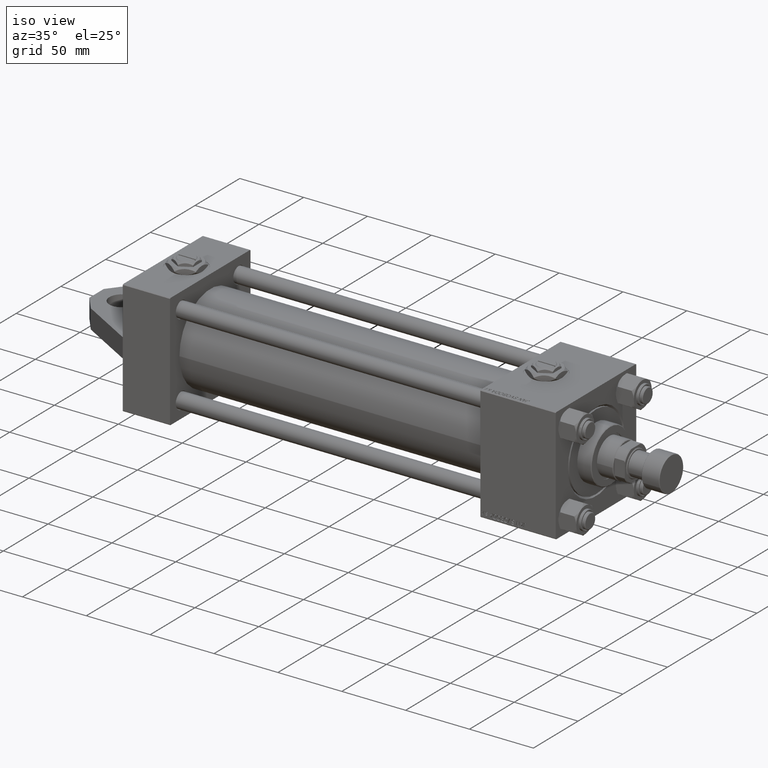
[diagram: clean part render]
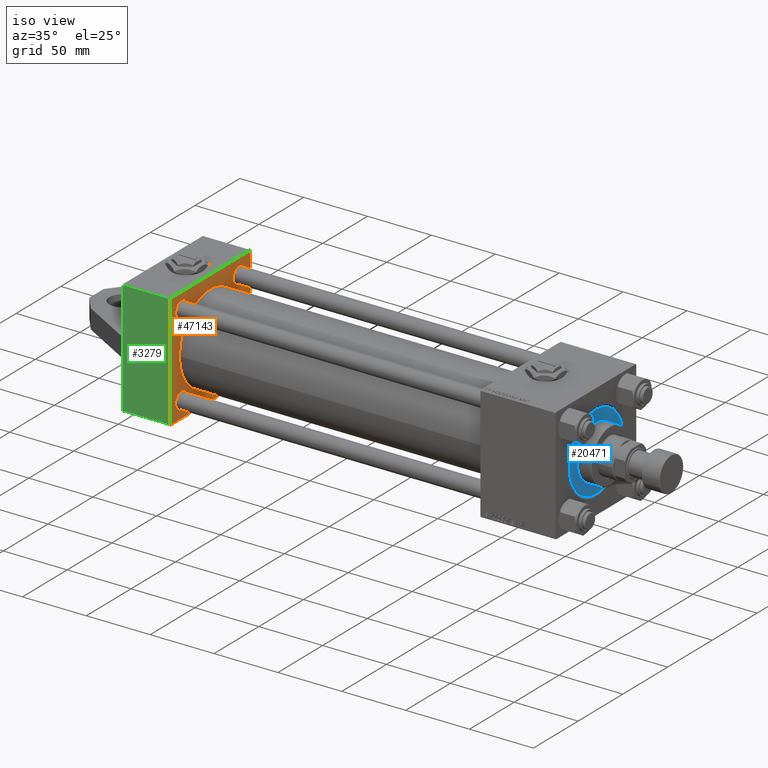
[diagram: same view with three faces highlighted in distinct colors, each labeled with its STEP entity id]
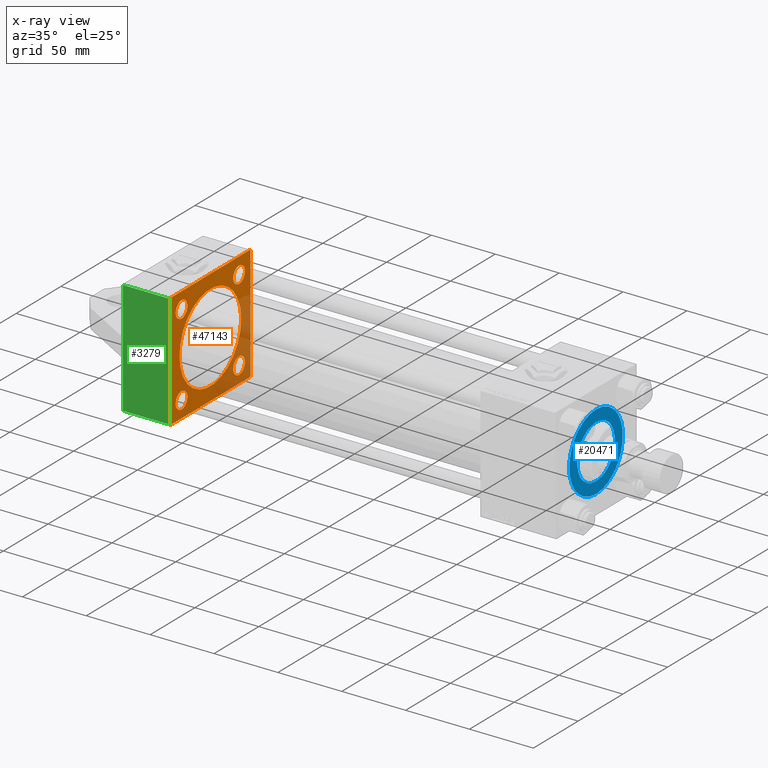
[diagram: x-ray of the same camera — body ghosted, the three highlighted faces saturated]
A machine part, iso view with three faces highlighted in distinct colors.
The next image is the same camera in x-ray (body ghosted, the three faces saturated) — at least one of them is partly hidden behind the body in this view.
Their STEP definitions:

[orange] entity #47143 — the highlighted planar face has unit normal (-1, -0, 0).
#2 = LINE ( 'NONE', #495, #3690 ) ;
#55 = CIRCLE ( 'NONE', #14951, 34.50000000000000000 ) ;
#204 = DIRECTION ( 'NONE',  ( 0.000000000000000000, 0.000000000000000000, 1.000000000000000000 ) ) ;
#495 = CARTESIAN_POINT ( 'NONE',  ( 37.00000000000000000, 44.99999999999998579, -44.99999999999998579 ) ) ;
#504 = CARTESIAN_POINT ( 'NONE',  ( 37.00000000000000000, -45.00000000000000711, 44.49999999999997158 ) ) ;
#586 = LINE ( 'NONE', #4527, #29570 ) ;
#946 = CIRCLE ( 'NONE', #26043, 6.499999999999922728 ) ;
#1616 = FACE_BOUND ( 'NONE', #37236, .T. ) ;
#2526 = ORIENTED_EDGE ( 'NONE', *, *, #20070, .F. ) ;
#2627 = DIRECTION ( 'NONE',  ( 1.000000000000000000, -0.000000000000000000, 0.000000000000000000 ) ) ;
#3173 = LINE ( 'NONE', #3410, #33235 ) ;
#3410 = CARTESIAN_POINT ( 'NONE',  ( 37.00000000000000000, 44.99999999999998579, 45.00000000000001421 ) ) ;
#3493 = ORIENTED_EDGE ( 'NONE', *, *, #23707, .T. ) ;
#3517 = DIRECTION ( 'NONE',  ( 0.000000000000000000, 0.7071067811865474617, -0.7071067811865474617 ) ) ;
#3690 = VECTOR ( 'NONE', #11313, 1000.000000000000000 ) ;
#3725 = DIRECTION ( 'NONE',  ( 0.000000000000000000, 0.000000000000000000, 1.000000000000000000 ) ) ;
#3971 = VECTOR ( 'NONE', #22260, 1000.000000000000114 ) ;
#4245 = CARTESIAN_POINT ( 'NONE',  ( 37.00000000000000000, -44.49999999999995737, 45.00000000000000000 ) ) ;
#4309 = ORIENTED_EDGE ( 'NONE', *, *, #12091, .T. ) ;
#4527 = CARTESIAN_POINT ( 'NONE',  ( 37.00000000000000000, -45.00000000000000711, 44.49999999999997158 ) ) ;
#4668 = VERTEX_POINT ( 'NONE', #23167 ) ;
#4688 = VERTEX_POINT ( 'NONE', #4245 ) ;
#4911 = VERTEX_POINT ( 'NONE', #47694 ) ;
#5779 = CARTESIAN_POINT ( 'NONE',  ( 37.00000000000000711, -2.602085213965210642E-15, 34.50000000000000000 ) ) ;
#6686 = DIRECTION ( 'NONE',  ( 1.000000000000000000, -0.000000000000000000, 0.000000000000000000 ) ) ;
#6786 = ORIENTED_EDGE ( 'NONE', *, *, #24041, .T. ) ;
#7144 = EDGE_CURVE ( 'NONE', #34865, #38864, #38962, .T. ) ;
#7212 = DIRECTION ( 'NONE',  ( 0.000000000000000000, 0.000000000000000000, 1.000000000000000000 ) ) ;
#7765 = LINE ( 'NONE', #37747, #8534 ) ;
#7767 = DIRECTION ( 'NONE',  ( -1.000000000000000000, 0.000000000000000000, -0.000000000000000000 ) ) ;
#8114 = LINE ( 'NONE', #19179, #42486 ) ;
#8487 = EDGE_CURVE ( 'NONE', #27273, #17897, #18452, .T. ) ;
#8504 = CIRCLE ( 'NONE', #32835, 6.499999999999950262 ) ;
#8534 = VECTOR ( 'NONE', #3517, 1000.000000000000114 ) ;
#8935 = EDGE_CURVE ( 'NONE', #11429, #41858, #17056, .T. ) ;
#8977 = CIRCLE ( 'NONE', #44302, 6.499999999999936051 ) ;
#8981 = FACE_BOUND ( 'NONE', #32952, .T. ) ;
#9510 = CARTESIAN_POINT ( 'NONE',  ( 37.00000000000000711, -2.602085213965210642E-15, 0.000000000000000000 ) ) ;
#9577 = EDGE_CURVE ( 'NONE', #18517, #36814, #2, .T. ) ;
#10237 = EDGE_LOOP ( 'NONE', ( #26459, #13084 ) ) ;
#10491 = CIRCLE ( 'NONE', #35616, 6.499999999999950262 ) ;
#10886 = EDGE_CURVE ( 'NONE', #24777, #11885, #8504, .T. ) ;
#11082 = CIRCLE ( 'NONE', #40147, 6.499999999999922728 ) ;
#11186 = CARTESIAN_POINT ( 'NONE',  ( 37.00000000000000000, 32.14999999999999147, 32.15000000000000568 ) ) ;
#11313 = DIRECTION ( 'NONE',  ( 0.000000000000000000, -1.000000000000000000, -1.541976423090495633E-16 ) ) ;
#11429 = VERTEX_POINT ( 'NONE', #5779 ) ;
#11885 = VERTEX_POINT ( 'NONE', #24047 ) ;
#12091 = EDGE_CURVE ( 'NONE', #17897, #36814, #7765, .T. ) ;
#12118 = CARTESIAN_POINT ( 'NONE',  ( 37.00000000000000000, 44.49999999999998579, 45.00000000000001421 ) ) ;
#12431 = DIRECTION ( 'NONE',  ( -1.000000000000000000, 0.000000000000000000, -0.000000000000000000 ) ) ;
#12666 = CARTESIAN_POINT ( 'NONE',  ( 37.00000000000000000, 0.000000000000000000, 0.000000000000000000 ) ) ;
#13084 = ORIENTED_EDGE ( 'NONE', *, *, #10886, .T. ) ;
#13355 = CARTESIAN_POINT ( 'NONE',  ( 37.00000000000000000, 44.99999999999998579, -44.49999999999995737 ) ) ;
#13492 = DIRECTION ( 'NONE',  ( -1.000000000000000000, 0.000000000000000000, -0.000000000000000000 ) ) ;
#14745 = CARTESIAN_POINT ( 'NONE',  ( 37.00000000000000000, -45.00000000000000711, 45.00000000000000000 ) ) ;
#14951 = AXIS2_PLACEMENT_3D ( 'NONE', #27841, #6686, #3725 ) ;
#15385 = EDGE_CURVE ( 'NONE', #42615, #4911, #28923, .T. ) ;
#17056 = CIRCLE ( 'NONE', #20989, 34.50000000000000000 ) ;
#17810 = CARTESIAN_POINT ( 'NONE',  ( 37.00000000000000000, 32.14999999999999147, -32.15000000000000568 ) ) ;
#17897 = VERTEX_POINT ( 'NONE', #30123 ) ;
#18049 = DIRECTION ( 'NONE',  ( -1.000000000000000000, 0.000000000000000000, -0.000000000000000000 ) ) ;
#18450 = CARTESIAN_POINT ( 'NONE',  ( 37.00000000000000000, 44.49999999999998579, -44.99999999999998579 ) ) ;
#18452 = LINE ( 'NONE', #14745, #34309 ) ;
#18517 = VERTEX_POINT ( 'NONE', #18450 ) ;
#18590 = CARTESIAN_POINT ( 'NONE',  ( 37.00000000000000000, -32.14999999999997726, 32.15000000000001279 ) ) ;
#18718 = CARTESIAN_POINT ( 'NONE',  ( 37.00000000000000000, 32.14999999999999147, 32.15000000000000568 ) ) ;
#19179 = CARTESIAN_POINT ( 'NONE',  ( 37.00000000000000000, 44.49999999999998579, 45.00000000000001421 ) ) ;
#19493 = DIRECTION ( 'NONE',  ( 0.000000000000000000, 0.000000000000000000, -1.000000000000000000 ) ) ;
#20065 = CARTESIAN_POINT ( 'NONE',  ( 37.00000000000000711, 1.622946243093158675E-15, -34.50000000000000000 ) ) ;
#20070 = EDGE_CURVE ( 'NONE', #41858, #11429, #55, .T. ) ;
#20378 = CARTESIAN_POINT ( 'NONE',  ( 37.00000000000000000, 32.14999999999999147, -25.65000000000008384 ) ) ;
#20639 = EDGE_CURVE ( 'NONE', #18517, #43487, #29633, .T. ) ;
#20828 = DIRECTION ( 'NONE',  ( 0.000000000000000000, 0.000000000000000000, 1.000000000000000000 ) ) ;
#20989 = AXIS2_PLACEMENT_3D ( 'NONE', #9510, #2627, #20828 ) ;
#21035 = DIRECTION ( 'NONE',  ( -1.000000000000000000, 0.000000000000000000, -0.000000000000000000 ) ) ;
#21548 = VERTEX_POINT ( 'NONE', #12118 ) ;
#22044 = DIRECTION ( 'NONE',  ( 0.000000000000000000, 0.000000000000000000, 1.000000000000000000 ) ) ;
#22086 = DIRECTION ( 'NONE',  ( 0.000000000000000000, 0.000000000000000000, 1.000000000000000000 ) ) ;
#22260 = DIRECTION ( 'NONE',  ( -0.000000000000000000, 0.7071067811865474617, 0.7071067811865474617 ) ) ;
#23126 = ORIENTED_EDGE ( 'NONE', *, *, #8487, .T. ) ;
#23167 = CARTESIAN_POINT ( 'NONE',  ( 37.00000000000000000, -32.14999999999997726, -25.65000000000007674 ) ) ;
#23424 = LINE ( 'NONE', #35219, #39506 ) ;
#23636 = ORIENTED_EDGE ( 'NONE', *, *, #31192, .T. ) ;
#23661 = ORIENTED_EDGE ( 'NONE', *, *, #31970, .T. ) ;
#23707 = EDGE_CURVE ( 'NONE', #4668, #33748, #24489, .T. ) ;
#23848 = DIRECTION ( 'NONE',  ( 0.000000000000000000, -0.7071067811865474617, 0.7071067811865474617 ) ) ;
#24041 = EDGE_CURVE ( 'NONE', #38864, #34865, #946, .T. ) ;
#24047 = CARTESIAN_POINT ( 'NONE',  ( 37.00000000000000000, -32.14999999999997726, 25.65000000000006253 ) ) ;
#24489 = CIRCLE ( 'NONE', #29193, 6.499999999999936051 ) ;
#24728 = DIRECTION ( 'NONE',  ( 0.000000000000000000, 0.000000000000000000, 1.000000000000000000 ) ) ;
#24777 = VERTEX_POINT ( 'NONE', #38379 ) ;
#25214 = CARTESIAN_POINT ( 'NONE',  ( 37.00000000000000000, -32.14999999999997726, -32.15000000000001279 ) ) ;
#26043 = AXIS2_PLACEMENT_3D ( 'NONE', #18718, #40601, #33004 ) ;
#26141 = DIRECTION ( 'NONE',  ( -0.000000000000000000, -0.7071067811865425767, -0.7071067811865524577 ) ) ;
#26404 = AXIS2_PLACEMENT_3D ( 'NONE', #12666, #12431, #38974 ) ;
#26459 = ORIENTED_EDGE ( 'NONE', *, *, #37335, .T. ) ;
#26754 = DIRECTION ( 'NONE',  ( -1.000000000000000000, 0.000000000000000000, -0.000000000000000000 ) ) ;
#27074 = EDGE_CURVE ( 'NONE', #33743, #43487, #23424, .T. ) ;
#27154 = DIRECTION ( 'NONE',  ( 0.000000000000000000, 0.000000000000000000, 1.000000000000000000 ) ) ;
#27273 = VERTEX_POINT ( 'NONE', #504 ) ;
#27605 = DIRECTION ( 'NONE',  ( -1.000000000000000000, 0.000000000000000000, -0.000000000000000000 ) ) ;
#27659 = PLANE ( 'NONE',  #26404 ) ;
#27698 = EDGE_LOOP ( 'NONE', ( #42392, #39232, #46480, #23636, #38017, #32751, #23126, #4309 ) ) ;
#27841 = CARTESIAN_POINT ( 'NONE',  ( 37.00000000000000711, -2.602085213965210642E-15, 0.000000000000000000 ) ) ;
#28324 = CARTESIAN_POINT ( 'NONE',  ( 37.00000000000000000, -44.49999999999995737, -45.00000000000000000 ) ) ;
#28923 = CIRCLE ( 'NONE', #41465, 6.499999999999922728 ) ;
#29058 = EDGE_LOOP ( 'NONE', ( #23661, #41444 ) ) ;
#29193 = AXIS2_PLACEMENT_3D ( 'NONE', #34759, #27605, #45803 ) ;
#29570 = VECTOR ( 'NONE', #26141, 1000.000000000000114 ) ;
#29633 = LINE ( 'NONE', #44608, #3971 ) ;
#30123 = CARTESIAN_POINT ( 'NONE',  ( 37.00000000000000000, -45.00000000000000000, -44.49999999999995737 ) ) ;
#30910 = CARTESIAN_POINT ( 'NONE',  ( 37.00000000000000000, -32.14999999999997726, -38.64999999999994884 ) ) ;
#31192 = EDGE_CURVE ( 'NONE', #33743, #21548, #8114, .T. ) ;
#31849 = FACE_BOUND ( 'NONE', #10237, .T. ) ;
#31970 = EDGE_CURVE ( 'NONE', #4911, #42615, #11082, .T. ) ;
#32095 = FACE_BOUND ( 'NONE', #35124, .T. ) ;
#32751 = ORIENTED_EDGE ( 'NONE', *, *, #47265, .T. ) ;
#32835 = AXIS2_PLACEMENT_3D ( 'NONE', #36361, #13492, #22086 ) ;
#32952 = EDGE_LOOP ( 'NONE', ( #33769, #6786 ) ) ;
#33004 = DIRECTION ( 'NONE',  ( 0.000000000000000000, 0.000000000000000000, 1.000000000000000000 ) ) ;
#33173 = CARTESIAN_POINT ( 'NONE',  ( 37.00000000000000000, 32.14999999999999147, -32.15000000000000568 ) ) ;
#33235 = VECTOR ( 'NONE', #44438, 1000.000000000000000 ) ;
#33560 = DIRECTION ( 'NONE',  ( -1.000000000000000000, 0.000000000000000000, -0.000000000000000000 ) ) ;
#33743 = VERTEX_POINT ( 'NONE', #34370 ) ;
#33748 = VERTEX_POINT ( 'NONE', #30910 ) ;
#33769 = ORIENTED_EDGE ( 'NONE', *, *, #7144, .T. ) ;
#34309 = VECTOR ( 'NONE', #46434, 1000.000000000000000 ) ;
#34370 = CARTESIAN_POINT ( 'NONE',  ( 37.00000000000000000, 44.99999999999998579, 44.50000000000001421 ) ) ;
#34709 = ORIENTED_EDGE ( 'NONE', *, *, #42046, .T. ) ;
#34759 = CARTESIAN_POINT ( 'NONE',  ( 37.00000000000000000, -32.14999999999997726, -32.15000000000001279 ) ) ;
#34865 = VERTEX_POINT ( 'NONE', #47748 ) ;
#35051 = FACE_BOUND ( 'NONE', #29058, .T. ) ;
#35124 = EDGE_LOOP ( 'NONE', ( #34709, #3493 ) ) ;
#35219 = CARTESIAN_POINT ( 'NONE',  ( 37.00000000000000000, 44.99999999999998579, 45.00000000000001421 ) ) ;
#35616 = AXIS2_PLACEMENT_3D ( 'NONE', #18590, #7767, #22044 ) ;
#36361 = CARTESIAN_POINT ( 'NONE',  ( 37.00000000000000000, -32.14999999999997726, 32.15000000000001279 ) ) ;
#36814 = VERTEX_POINT ( 'NONE', #28324 ) ;
#37236 = EDGE_LOOP ( 'NONE', ( #38023, #2526 ) ) ;
#37335 = EDGE_CURVE ( 'NONE', #11885, #24777, #10491, .T. ) ;
#37747 = CARTESIAN_POINT ( 'NONE',  ( 37.00000000000000000, -44.49999999999998579, -45.00000000000000000 ) ) ;
#38017 = ORIENTED_EDGE ( 'NONE', *, *, #39333, .T. ) ;
#38023 = ORIENTED_EDGE ( 'NONE', *, *, #8935, .F. ) ;
#38379 = CARTESIAN_POINT ( 'NONE',  ( 37.00000000000000000, -32.14999999999997726, 38.64999999999996305 ) ) ;
#38864 = VERTEX_POINT ( 'NONE', #43906 ) ;
#38962 = CIRCLE ( 'NONE', #40530, 6.499999999999922728 ) ;
#38974 = DIRECTION ( 'NONE',  ( -0.000000000000000000, 0.000000000000000000, 1.000000000000000000 ) ) ;
#39216 = FACE_OUTER_BOUND ( 'NONE', #27698, .T. ) ;
#39232 = ORIENTED_EDGE ( 'NONE', *, *, #20639, .T. ) ;
#39333 = EDGE_CURVE ( 'NONE', #21548, #4688, #3173, .T. ) ;
#39506 = VECTOR ( 'NONE', #19493, 1000.000000000000000 ) ;
#40147 = AXIS2_PLACEMENT_3D ( 'NONE', #17810, #18049, #7212 ) ;
#40530 = AXIS2_PLACEMENT_3D ( 'NONE', #11186, #33560, #27154 ) ;
#40601 = DIRECTION ( 'NONE',  ( -1.000000000000000000, 0.000000000000000000, -0.000000000000000000 ) ) ;
#41444 = ORIENTED_EDGE ( 'NONE', *, *, #15385, .T. ) ;
#41465 = AXIS2_PLACEMENT_3D ( 'NONE', #33173, #26754, #204 ) ;
#41858 = VERTEX_POINT ( 'NONE', #20065 ) ;
#42046 = EDGE_CURVE ( 'NONE', #33748, #4668, #8977, .T. ) ;
#42392 = ORIENTED_EDGE ( 'NONE', *, *, #9577, .F. ) ;
#42486 = VECTOR ( 'NONE', #23848, 1000.000000000000114 ) ;
#42615 = VERTEX_POINT ( 'NONE', #20378 ) ;
#43487 = VERTEX_POINT ( 'NONE', #13355 ) ;
#43906 = CARTESIAN_POINT ( 'NONE',  ( 37.00000000000000000, 32.14999999999999147, 38.64999999999992752 ) ) ;
#44302 = AXIS2_PLACEMENT_3D ( 'NONE', #25214, #21035, #24728 ) ;
#44438 = DIRECTION ( 'NONE',  ( 0.000000000000000000, -1.000000000000000000, -1.541976423090495387E-16 ) ) ;
#44608 = CARTESIAN_POINT ( 'NONE',  ( 37.00000000000000000, 44.99999999999998579, -44.49999999999998579 ) ) ;
#45803 = DIRECTION ( 'NONE',  ( 0.000000000000000000, 0.000000000000000000, 1.000000000000000000 ) ) ;
#46434 = DIRECTION ( 'NONE',  ( 0.000000000000000000, 7.709882115452476934E-17, -1.000000000000000000 ) ) ;
#46480 = ORIENTED_EDGE ( 'NONE', *, *, #27074, .F. ) ;
#47143 = ADVANCED_FACE ( 'NONE', ( #1616, #8981, #31849, #32095, #35051, #39216 ), #27659, .F. ) ;
#47265 = EDGE_CURVE ( 'NONE', #4688, #27273, #586, .T. ) ;
#47694 = CARTESIAN_POINT ( 'NONE',  ( 37.00000000000000000, 32.14999999999999147, -38.64999999999992752 ) ) ;
#47748 = CARTESIAN_POINT ( 'NONE',  ( 37.00000000000000000, 32.14999999999999147, 25.65000000000008384 ) ) ;

[blue] entity #20471 — the highlighted planar face has unit normal (1, 0, 0).
#935 = EDGE_CURVE ( 'NONE', #47893, #37170, #5049, .T. ) ;
#5049 = CIRCLE ( 'NONE', #38810, 21.00000000000000000 ) ;
#5966 = AXIS2_PLACEMENT_3D ( 'NONE', #39644, #31554, #46286 ) ;
#6328 = CARTESIAN_POINT ( 'NONE',  ( 30.00000000000000000, 3.673940397442059178E-15, 28.69999999999999929 ) ) ;
#8507 = DIRECTION ( 'NONE',  ( 0.000000000000000000, 0.000000000000000000, 1.000000000000000000 ) ) ;
#10098 = DIRECTION ( 'NONE',  ( 0.000000000000000000, 0.000000000000000000, 1.000000000000000000 ) ) ;
#10503 = EDGE_LOOP ( 'NONE', ( #45696, #20973 ) ) ;
#10583 = EDGE_LOOP ( 'NONE', ( #48396, #18316 ) ) ;
#12588 = AXIS2_PLACEMENT_3D ( 'NONE', #23078, #26513, #30704 ) ;
#15388 = CARTESIAN_POINT ( 'NONE',  ( 21.00000000000000000, 2.571758278209441661E-15, 28.69999999999999929 ) ) ;
#15573 = AXIS2_PLACEMENT_3D ( 'NONE', #38975, #20049, #16109 ) ;
#15695 = FACE_OUTER_BOUND ( 'NONE', #10503, .T. ) ;
#15807 = EDGE_CURVE ( 'NONE', #19119, #44141, #24221, .T. ) ;
#15859 = EDGE_CURVE ( 'NONE', #37170, #47893, #21095, .T. ) ;
#16109 = DIRECTION ( 'NONE',  ( 1.000000000000000000, 0.000000000000000000, 0.000000000000000000 ) ) ;
#18166 = CARTESIAN_POINT ( 'NONE',  ( -21.00000000000000000, 0.000000000000000000, 28.69999999999999929 ) ) ;
#18316 = ORIENTED_EDGE ( 'NONE', *, *, #935, .F. ) ;
#19119 = VERTEX_POINT ( 'NONE', #26124 ) ;
#19388 = PLANE ( 'NONE',  #12588 ) ;
#20049 = DIRECTION ( 'NONE',  ( 0.000000000000000000, 0.000000000000000000, 1.000000000000000000 ) ) ;
#20471 = ADVANCED_FACE ( 'NONE', ( #33895, #15695 ), #19388, .T. ) ;
#20875 = CIRCLE ( 'NONE', #5966, 30.00000000000000000 ) ;
#20973 = ORIENTED_EDGE ( 'NONE', *, *, #44864, .T. ) ;
#21095 = CIRCLE ( 'NONE', #27376, 21.00000000000000000 ) ;
#23078 = CARTESIAN_POINT ( 'NONE',  ( 0.000000000000000000, 0.000000000000000000, 28.69999999999999929 ) ) ;
#24221 = CIRCLE ( 'NONE', #15573, 30.00000000000000000 ) ;
#25101 = CARTESIAN_POINT ( 'NONE',  ( 0.000000000000000000, 0.000000000000000000, 28.69999999999999929 ) ) ;
#26124 = CARTESIAN_POINT ( 'NONE',  ( -30.00000000000000000, 0.000000000000000000, 28.69999999999999929 ) ) ;
#26513 = DIRECTION ( 'NONE',  ( 0.000000000000000000, 0.000000000000000000, 1.000000000000000000 ) ) ;
#26935 = CARTESIAN_POINT ( 'NONE',  ( 0.000000000000000000, 0.000000000000000000, 28.69999999999999929 ) ) ;
#27376 = AXIS2_PLACEMENT_3D ( 'NONE', #26935, #8507, #46092 ) ;
#30704 = DIRECTION ( 'NONE',  ( 1.000000000000000000, 0.000000000000000000, -0.000000000000000000 ) ) ;
#31554 = DIRECTION ( 'NONE',  ( 0.000000000000000000, 0.000000000000000000, 1.000000000000000000 ) ) ;
#33895 = FACE_BOUND ( 'NONE', #10583, .T. ) ;
#37170 = VERTEX_POINT ( 'NONE', #18166 ) ;
#38810 = AXIS2_PLACEMENT_3D ( 'NONE', #25101, #10098, #40798 ) ;
#38975 = CARTESIAN_POINT ( 'NONE',  ( 0.000000000000000000, 0.000000000000000000, 28.69999999999999929 ) ) ;
#39644 = CARTESIAN_POINT ( 'NONE',  ( 0.000000000000000000, 0.000000000000000000, 28.69999999999999929 ) ) ;
#40798 = DIRECTION ( 'NONE',  ( 1.000000000000000000, 0.000000000000000000, 0.000000000000000000 ) ) ;
#44141 = VERTEX_POINT ( 'NONE', #6328 ) ;
#44864 = EDGE_CURVE ( 'NONE', #44141, #19119, #20875, .T. ) ;
#45696 = ORIENTED_EDGE ( 'NONE', *, *, #15807, .T. ) ;
#46092 = DIRECTION ( 'NONE',  ( 1.000000000000000000, 0.000000000000000000, 0.000000000000000000 ) ) ;
#46286 = DIRECTION ( 'NONE',  ( 1.000000000000000000, 0.000000000000000000, 0.000000000000000000 ) ) ;
#47893 = VERTEX_POINT ( 'NONE', #15388 ) ;
#48396 = ORIENTED_EDGE ( 'NONE', *, *, #15859, .F. ) ;

[green] entity #3279 — the highlighted planar face has unit normal (-0, 1, 0).
#394 = AXIS2_PLACEMENT_3D ( 'NONE', #35063, #26946, #38011 ) ;
#624 = EDGE_CURVE ( 'NONE', #31157, #3096, #29086, .T. ) ;
#1392 = VERTEX_POINT ( 'NONE', #13178 ) ;
#1430 = LINE ( 'NONE', #16415, #3466 ) ;
#2111 = EDGE_CURVE ( 'NONE', #31157, #33498, #1430, .T. ) ;
#3096 = VERTEX_POINT ( 'NONE', #33127 ) ;
#3173 = LINE ( 'NONE', #3410, #33235 ) ;
#3279 = ADVANCED_FACE ( 'NONE', ( #19817 ), #46104, .F. ) ;
#3410 = CARTESIAN_POINT ( 'NONE',  ( 37.00000000000000000, 44.99999999999998579, 45.00000000000001421 ) ) ;
#3466 = VECTOR ( 'NONE', #4159, 1000.000000000000000 ) ;
#3767 = CARTESIAN_POINT ( 'NONE',  ( 0.000000000000000000, 44.49999999999998579, 45.00000000000001421 ) ) ;
#4159 = DIRECTION ( 'NONE',  ( 0.000000000000000000, -1.000000000000000000, -1.541976423090495387E-16 ) ) ;
#4245 = CARTESIAN_POINT ( 'NONE',  ( 37.00000000000000000, -44.49999999999995737, 45.00000000000000000 ) ) ;
#4688 = VERTEX_POINT ( 'NONE', #4245 ) ;
#10786 = LINE ( 'NONE', #11025, #41809 ) ;
#11025 = CARTESIAN_POINT ( 'NONE',  ( 0.000000000000000000, 44.99999999999998579, 45.00000000000001421 ) ) ;
#12118 = CARTESIAN_POINT ( 'NONE',  ( 37.00000000000000000, 44.49999999999998579, 45.00000000000001421 ) ) ;
#13122 = ORIENTED_EDGE ( 'NONE', *, *, #28691, .T. ) ;
#13165 = ORIENTED_EDGE ( 'NONE', *, *, #2111, .T. ) ;
#13178 = CARTESIAN_POINT ( 'NONE',  ( 0.000000000000000000, 44.49999999999998579, 45.00000000000001421 ) ) ;
#15178 = CARTESIAN_POINT ( 'NONE',  ( 37.00000000000000000, -44.49999999999998579, 45.00000000000000000 ) ) ;
#15337 = ORIENTED_EDGE ( 'NONE', *, *, #39333, .F. ) ;
#15687 = DIRECTION ( 'NONE',  ( 0.000000000000000000, -1.000000000000000000, -1.541976423090495387E-16 ) ) ;
#16415 = CARTESIAN_POINT ( 'NONE',  ( 0.000000000000000000, 44.99999999999998579, 45.00000000000001421 ) ) ;
#18347 = VECTOR ( 'NONE', #32553, 1000.000000000000000 ) ;
#18758 = DIRECTION ( 'NONE',  ( -1.000000000000000000, 0.000000000000000000, 0.000000000000000000 ) ) ;
#18879 = LINE ( 'NONE', #15178, #22157 ) ;
#19817 = FACE_OUTER_BOUND ( 'NONE', #32879, .T. ) ;
#21415 = EDGE_CURVE ( 'NONE', #21548, #1392, #40641, .T. ) ;
#21548 = VERTEX_POINT ( 'NONE', #12118 ) ;
#22157 = VECTOR ( 'NONE', #41492, 1000.000000000000000 ) ;
#25391 = ORIENTED_EDGE ( 'NONE', *, *, #624, .F. ) ;
#25794 = ORIENTED_EDGE ( 'NONE', *, *, #21415, .T. ) ;
#26946 = DIRECTION ( 'NONE',  ( 0.000000000000000000, 1.541976423090495633E-16, -1.000000000000000000 ) ) ;
#27520 = CARTESIAN_POINT ( 'NONE',  ( 0.000000000000000000, -7.500000000000000000, 45.00000000000000000 ) ) ;
#27667 = EDGE_CURVE ( 'NONE', #33498, #4688, #18879, .T. ) ;
#28691 = EDGE_CURVE ( 'NONE', #1392, #3096, #10786, .T. ) ;
#29086 = LINE ( 'NONE', #29564, #18347 ) ;
#29564 = CARTESIAN_POINT ( 'NONE',  ( 0.000000000000000000, -7.500000000000000000, 45.00000000000000000 ) ) ;
#31157 = VERTEX_POINT ( 'NONE', #27520 ) ;
#32553 = DIRECTION ( 'NONE',  ( 0.000000000000000000, 1.000000000000000000, 0.000000000000000000 ) ) ;
#32879 = EDGE_LOOP ( 'NONE', ( #13122, #25391, #13165, #43309, #15337, #25794 ) ) ;
#33066 = VECTOR ( 'NONE', #18758, 1000.000000000000000 ) ;
#33127 = CARTESIAN_POINT ( 'NONE',  ( 0.000000000000000000, 7.500000000000000000, 45.00000000000000000 ) ) ;
#33235 = VECTOR ( 'NONE', #44438, 1000.000000000000000 ) ;
#33498 = VERTEX_POINT ( 'NONE', #47932 ) ;
#35063 = CARTESIAN_POINT ( 'NONE',  ( 37.00000000000000000, 44.99999999999998579, 45.00000000000001421 ) ) ;
#38011 = DIRECTION ( 'NONE',  ( 0.000000000000000000, 1.000000000000000000, 1.541976423090495633E-16 ) ) ;
#39333 = EDGE_CURVE ( 'NONE', #21548, #4688, #3173, .T. ) ;
#40641 = LINE ( 'NONE', #3767, #33066 ) ;
#41492 = DIRECTION ( 'NONE',  ( 1.000000000000000000, 0.000000000000000000, 0.000000000000000000 ) ) ;
#41809 = VECTOR ( 'NONE', #15687, 1000.000000000000000 ) ;
#43309 = ORIENTED_EDGE ( 'NONE', *, *, #27667, .T. ) ;
#44438 = DIRECTION ( 'NONE',  ( 0.000000000000000000, -1.000000000000000000, -1.541976423090495387E-16 ) ) ;
#46104 = PLANE ( 'NONE',  #394 ) ;
#47932 = CARTESIAN_POINT ( 'NONE',  ( 0.000000000000000000, -44.49999999999995737, 45.00000000000000000 ) ) ;